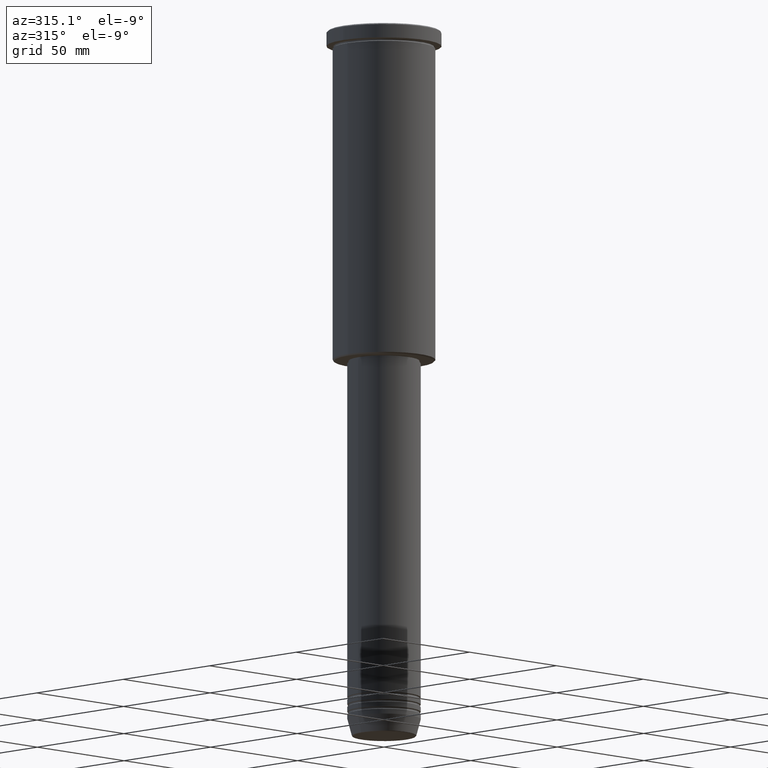
[diagram: clean part render]
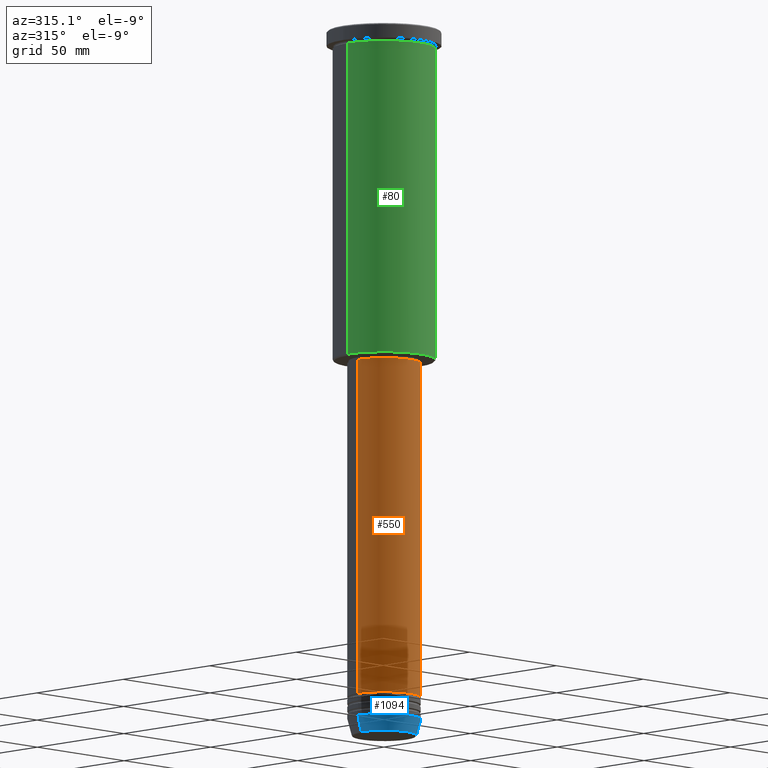
[diagram: same view with three faces highlighted in distinct colors, each labeled with its STEP entity id]
A machine part, auxiliary view with three faces highlighted in distinct colors.
Their STEP definitions:

[orange] entity #550 — the highlighted cylindrical surface (partial cylindrical patch) has radius 15 mm, axis along (-0, -0, 1).
#7 = LINE ( 'NONE', #613, #436 ) ;
#100 = DIRECTION ( 'NONE',  ( -0.000000000000000000, -0.000000000000000000, 1.000000000000000000 ) ) ;
#116 = CARTESIAN_POINT ( 'NONE',  ( 0.000000000000000000, 0.000000000000000000, -137.0000000000000000 ) ) ;
#219 = EDGE_CURVE ( 'NONE', #853, #919, #912, .T. ) ;
#246 = VERTEX_POINT ( 'NONE', #363 ) ;
#249 = CYLINDRICAL_SURFACE ( 'NONE', #1086, 15.00000000000000000 ) ;
#255 = CIRCLE ( 'NONE', #759, 15.00000000000000000 ) ;
#264 = DIRECTION ( 'NONE',  ( -0.000000000000000000, -0.000000000000000000, 1.000000000000000000 ) ) ;
#275 = DIRECTION ( 'NONE',  ( -0.000000000000000000, -0.000000000000000000, 1.000000000000000000 ) ) ;
#280 = CARTESIAN_POINT ( 'NONE',  ( -15.00000000000000000, 1.836970198721029589E-15, -137.0000000000000000 ) ) ;
#286 = ORIENTED_EDGE ( 'NONE', *, *, #467, .F. ) ;
#357 = VECTOR ( 'NONE', #100, 1000.000000000000000 ) ;
#363 = CARTESIAN_POINT ( 'NONE',  ( 15.00000000000000000, 0.000000000000000000, -275.0000000000000000 ) ) ;
#436 = VECTOR ( 'NONE', #275, 1000.000000000000000 ) ;
#467 = EDGE_CURVE ( 'NONE', #919, #904, #1045, .T. ) ;
#472 = DIRECTION ( 'NONE',  ( -0.000000000000000000, -0.000000000000000000, 1.000000000000000000 ) ) ;
#501 = EDGE_LOOP ( 'NONE', ( #1135, #1131, #1097, #286 ) ) ;
#550 = ADVANCED_FACE ( 'NONE', ( #707 ), #249, .T. ) ;
#613 = CARTESIAN_POINT ( 'NONE',  ( 15.00000000000000000, 0.000000000000000000, 0.000000000000000000 ) ) ;
#635 = CARTESIAN_POINT ( 'NONE',  ( 0.000000000000000000, 0.000000000000000000, -275.0000000000000000 ) ) ;
#706 = DIRECTION ( 'NONE',  ( -0.000000000000000000, -0.000000000000000000, 1.000000000000000000 ) ) ;
#707 = FACE_OUTER_BOUND ( 'NONE', #501, .T. ) ;
#726 = CARTESIAN_POINT ( 'NONE',  ( -15.00000000000000000, 1.836970198721029589E-15, 0.000000000000000000 ) ) ;
#759 = AXIS2_PLACEMENT_3D ( 'NONE', #635, #706, #896 ) ;
#788 = DIRECTION ( 'NONE',  ( 1.000000000000000000, 0.000000000000000000, 0.000000000000000000 ) ) ;
#811 = CARTESIAN_POINT ( 'NONE',  ( 15.00000000000000000, 0.000000000000000000, -137.0000000000000000 ) ) ;
#833 = AXIS2_PLACEMENT_3D ( 'NONE', #116, #472, #838 ) ;
#838 = DIRECTION ( 'NONE',  ( 1.000000000000000000, 0.000000000000000000, 0.000000000000000000 ) ) ;
#853 = VERTEX_POINT ( 'NONE', #1151 ) ;
#896 = DIRECTION ( 'NONE',  ( 1.000000000000000000, 0.000000000000000000, 0.000000000000000000 ) ) ;
#904 = VERTEX_POINT ( 'NONE', #811 ) ;
#912 = LINE ( 'NONE', #726, #357 ) ;
#919 = VERTEX_POINT ( 'NONE', #280 ) ;
#933 = EDGE_CURVE ( 'NONE', #853, #246, #255, .T. ) ;
#955 = EDGE_CURVE ( 'NONE', #246, #904, #7, .T. ) ;
#1045 = CIRCLE ( 'NONE', #833, 15.00000000000000000 ) ;
#1076 = CARTESIAN_POINT ( 'NONE',  ( 0.000000000000000000, 0.000000000000000000, 0.000000000000000000 ) ) ;
#1086 = AXIS2_PLACEMENT_3D ( 'NONE', #1076, #264, #788 ) ;
#1097 = ORIENTED_EDGE ( 'NONE', *, *, #955, .T. ) ;
#1131 = ORIENTED_EDGE ( 'NONE', *, *, #933, .T. ) ;
#1135 = ORIENTED_EDGE ( 'NONE', *, *, #219, .F. ) ;
#1151 = CARTESIAN_POINT ( 'NONE',  ( -15.00000000000000000, 1.836970198721029589E-15, -275.0000000000000000 ) ) ;

[blue] entity #1094 — the highlighted conical surface has half-angle 15 deg.
#32 = DIRECTION ( 'NONE',  ( -0.2588190451025213501, 3.169619151431772337E-17, 0.9659258262890680902 ) ) ;
#48 = CARTESIAN_POINT ( 'NONE',  ( -15.00000000000000000, 1.836970198721029589E-15, -284.0000000000000568 ) ) ;
#82 = CONICAL_SURFACE ( 'NONE', #892, 15.00000000000000000, 0.2617993877991500740 ) ;
#105 = CARTESIAN_POINT ( 'NONE',  ( 15.00000000000000000, 0.000000000000000000, -284.0000000000000568 ) ) ;
#125 = DIRECTION ( 'NONE',  ( -0.000000000000000000, -0.000000000000000000, 1.000000000000000000 ) ) ;
#154 = VECTOR ( 'NONE', #1085, 1000.000000000000000 ) ;
#164 = VERTEX_POINT ( 'NONE', #874 ) ;
#196 = LINE ( 'NONE', #105, #154 ) ;
#226 = DIRECTION ( 'NONE',  ( 1.000000000000000000, 0.000000000000000000, 0.000000000000000000 ) ) ;
#237 = DIRECTION ( 'NONE',  ( 1.000000000000000000, 0.000000000000000000, 0.000000000000000000 ) ) ;
#242 = EDGE_CURVE ( 'NONE', #164, #400, #196, .T. ) ;
#253 = CIRCLE ( 'NONE', #890, 13.22365507213718772 ) ;
#292 = CARTESIAN_POINT ( 'NONE',  ( 0.000000000000000000, 0.000000000000000000, -284.0000000000000568 ) ) ;
#313 = DIRECTION ( 'NONE',  ( -0.000000000000000000, -0.000000000000000000, 1.000000000000000000 ) ) ;
#383 = EDGE_CURVE ( 'NONE', #528, #400, #433, .T. ) ;
#400 = VERTEX_POINT ( 'NONE', #942 ) ;
#433 = CIRCLE ( 'NONE', #507, 15.00000000000000000 ) ;
#434 = CARTESIAN_POINT ( 'NONE',  ( -13.22365507213718772, 1.728200442216588386E-15, -290.6294095225513274 ) ) ;
#438 = EDGE_CURVE ( 'NONE', #876, #164, #253, .T. ) ;
#507 = AXIS2_PLACEMENT_3D ( 'NONE', #1025, #313, #656 ) ;
#528 = VERTEX_POINT ( 'NONE', #701 ) ;
#584 = EDGE_LOOP ( 'NONE', ( #711, #997, #776, #760 ) ) ;
#653 = LINE ( 'NONE', #48, #779 ) ;
#656 = DIRECTION ( 'NONE',  ( 1.000000000000000000, 0.000000000000000000, 0.000000000000000000 ) ) ;
#673 = DIRECTION ( 'NONE',  ( -0.000000000000000000, -0.000000000000000000, 1.000000000000000000 ) ) ;
#693 = EDGE_CURVE ( 'NONE', #876, #528, #653, .T. ) ;
#701 = CARTESIAN_POINT ( 'NONE',  ( -15.00000000000000000, 1.836970198721029589E-15, -284.0000000000000568 ) ) ;
#711 = ORIENTED_EDGE ( 'NONE', *, *, #693, .F. ) ;
#760 = ORIENTED_EDGE ( 'NONE', *, *, #383, .F. ) ;
#776 = ORIENTED_EDGE ( 'NONE', *, *, #242, .T. ) ;
#779 = VECTOR ( 'NONE', #32, 1000.000000000000000 ) ;
#874 = CARTESIAN_POINT ( 'NONE',  ( 13.22365507213718772, 0.000000000000000000, -290.6294095225513274 ) ) ;
#876 = VERTEX_POINT ( 'NONE', #434 ) ;
#890 = AXIS2_PLACEMENT_3D ( 'NONE', #956, #673, #237 ) ;
#892 = AXIS2_PLACEMENT_3D ( 'NONE', #292, #125, #226 ) ;
#942 = CARTESIAN_POINT ( 'NONE',  ( 15.00000000000000000, 0.000000000000000000, -284.0000000000000568 ) ) ;
#956 = CARTESIAN_POINT ( 'NONE',  ( 0.000000000000000000, 0.000000000000000000, -290.6294095225513274 ) ) ;
#997 = ORIENTED_EDGE ( 'NONE', *, *, #438, .T. ) ;
#1025 = CARTESIAN_POINT ( 'NONE',  ( 0.000000000000000000, 0.000000000000000000, -284.0000000000000568 ) ) ;
#1085 = DIRECTION ( 'NONE',  ( 0.2588190451025213501, 0.000000000000000000, 0.9659258262890680902 ) ) ;
#1094 = ADVANCED_FACE ( 'NONE', ( #1109 ), #82, .T. ) ;
#1109 = FACE_OUTER_BOUND ( 'NONE', #584, .T. ) ;

[green] entity #80 — the highlighted cylindrical surface (partial cylindrical patch) has radius 21 mm, axis along (-0, -0, 1).
#31 = VERTEX_POINT ( 'NONE', #1148 ) ;
#44 = LINE ( 'NONE', #495, #94 ) ;
#80 = ADVANCED_FACE ( 'NONE', ( #1155 ), #346, .T. ) ;
#94 = VECTOR ( 'NONE', #1128, 1000.000000000000000 ) ;
#152 = DIRECTION ( 'NONE',  ( -0.000000000000000000, -0.000000000000000000, 1.000000000000000000 ) ) ;
#174 = CARTESIAN_POINT ( 'NONE',  ( 21.00000000000000000, 0.000000000000000000, 0.000000000000000000 ) ) ;
#218 = VERTEX_POINT ( 'NONE', #829 ) ;
#291 = EDGE_CURVE ( 'NONE', #218, #359, #850, .T. ) ;
#295 = DIRECTION ( 'NONE',  ( -0.000000000000000000, -0.000000000000000000, 1.000000000000000000 ) ) ;
#312 = CARTESIAN_POINT ( 'NONE',  ( -21.00000000000000000, 2.571758278209441661E-15, -6.999999999999994671 ) ) ;
#346 = CYLINDRICAL_SURFACE ( 'NONE', #1003, 21.00000000000000000 ) ;
#348 = ORIENTED_EDGE ( 'NONE', *, *, #360, .F. ) ;
#355 = ORIENTED_EDGE ( 'NONE', *, *, #721, .F. ) ;
#359 = VERTEX_POINT ( 'NONE', #1047 ) ;
#360 = EDGE_CURVE ( 'NONE', #218, #719, #44, .T. ) ;
#382 = ORIENTED_EDGE ( 'NONE', *, *, #1016, .T. ) ;
#495 = CARTESIAN_POINT ( 'NONE',  ( -21.00000000000000000, 2.571758278209441661E-15, 0.000000000000000000 ) ) ;
#556 = DIRECTION ( 'NONE',  ( 1.000000000000000000, 0.000000000000000000, 0.000000000000000000 ) ) ;
#611 = DIRECTION ( 'NONE',  ( 1.000000000000000000, 0.000000000000000000, 0.000000000000000000 ) ) ;
#616 = CARTESIAN_POINT ( 'NONE',  ( 0.000000000000000000, 0.000000000000000000, 0.000000000000000000 ) ) ;
#625 = EDGE_LOOP ( 'NONE', ( #348, #1142, #382, #355 ) ) ;
#640 = CARTESIAN_POINT ( 'NONE',  ( 0.000000000000000000, 0.000000000000000000, -135.4999999999998863 ) ) ;
#644 = DIRECTION ( 'NONE',  ( -1.000000000000000000, 0.000000000000000000, 0.000000000000000000 ) ) ;
#655 = CIRCLE ( 'NONE', #991, 21.00000000000000000 ) ;
#661 = DIRECTION ( 'NONE',  ( -0.000000000000000000, -0.000000000000000000, 1.000000000000000000 ) ) ;
#667 = CARTESIAN_POINT ( 'NONE',  ( 0.000000000000000000, 0.000000000000000000, -6.999999999999994671 ) ) ;
#699 = VECTOR ( 'NONE', #710, 1000.000000000000000 ) ;
#710 = DIRECTION ( 'NONE',  ( -0.000000000000000000, -0.000000000000000000, 1.000000000000000000 ) ) ;
#719 = VERTEX_POINT ( 'NONE', #312 ) ;
#721 = EDGE_CURVE ( 'NONE', #719, #31, #655, .T. ) ;
#797 = AXIS2_PLACEMENT_3D ( 'NONE', #640, #295, #644 ) ;
#829 = CARTESIAN_POINT ( 'NONE',  ( -21.00000000000000000, 2.571758278209441661E-15, -135.4999999999998863 ) ) ;
#850 = CIRCLE ( 'NONE', #797, 21.00000000000000000 ) ;
#985 = LINE ( 'NONE', #174, #699 ) ;
#991 = AXIS2_PLACEMENT_3D ( 'NONE', #667, #661, #556 ) ;
#1003 = AXIS2_PLACEMENT_3D ( 'NONE', #616, #152, #611 ) ;
#1016 = EDGE_CURVE ( 'NONE', #359, #31, #985, .T. ) ;
#1047 = CARTESIAN_POINT ( 'NONE',  ( 21.00000000000000000, 0.000000000000000000, -135.4999999999998863 ) ) ;
#1128 = DIRECTION ( 'NONE',  ( -0.000000000000000000, -0.000000000000000000, 1.000000000000000000 ) ) ;
#1142 = ORIENTED_EDGE ( 'NONE', *, *, #291, .T. ) ;
#1148 = CARTESIAN_POINT ( 'NONE',  ( 21.00000000000000000, 0.000000000000000000, -6.999999999999994671 ) ) ;
#1155 = FACE_OUTER_BOUND ( 'NONE', #625, .T. ) ;